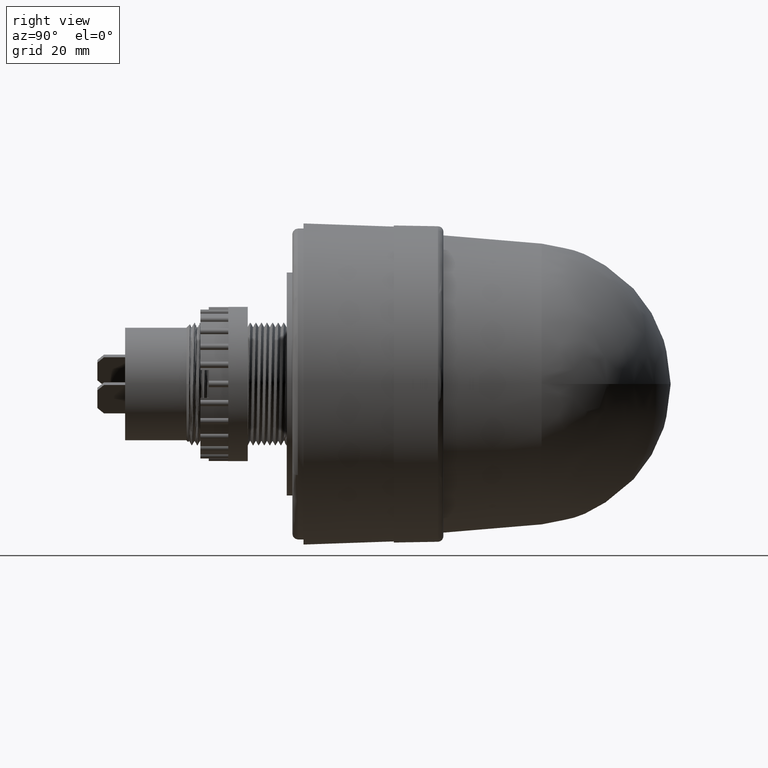
[diagram: clean part render]
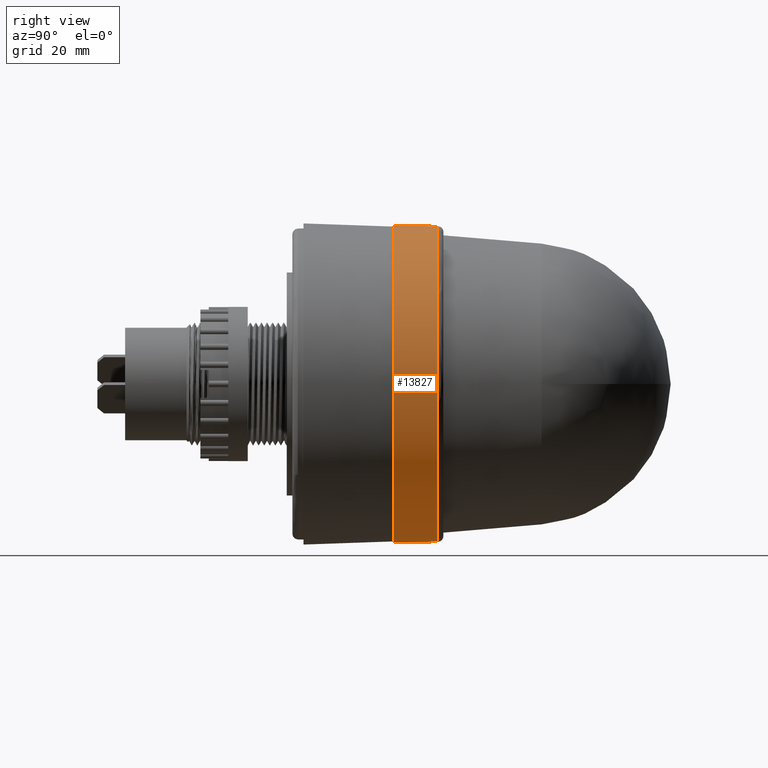
[diagram: same view with one face highlighted and labeled with its STEP entity id]
A machine part, right view. The second image highlights one B-rep face of the part: STEP entity #13827.
In plain terms, the highlighted conical surface has half-angle 1 deg.
Its self-contained STEP definition (entity closure, byte-faithful):
#531 = ORIENTED_EDGE ( 'NONE', *, *, #4887, .T. ) ;
#1646 = LINE ( 'NONE', #11508, #6459 ) ;
#2115 = AXIS2_PLACEMENT_3D ( 'NONE', #12367, #15938, #12436 ) ;
#2377 = FACE_OUTER_BOUND ( 'NONE', #11537, .T. ) ;
#2706 = VERTEX_POINT ( 'NONE', #11312 ) ;
#2730 = VERTEX_POINT ( 'NONE', #20176 ) ;
#4346 = CONICAL_SURFACE ( 'NONE', #2115, 1.120078740153986200, 0.01745329249999962400 ) ;
#4487 = CARTESIAN_POINT ( 'NONE',  ( 0.0000000000000000000, -5.887132426346487000E-014, 0.0000000000000000000 ) ) ;
#4741 = EDGE_CURVE ( 'NONE', #13615, #8404, #1646, .T. ) ;
#4782 = EDGE_CURVE ( 'NONE', #2730, #8404, #5891, .T. ) ;
#4887 = EDGE_CURVE ( 'NONE', #2706, #2730, #10341, .T. ) ;
#4917 = EDGE_CURVE ( 'NONE', #2706, #13615, #15077, .T. ) ;
#5619 = ORIENTED_EDGE ( 'NONE', *, *, #4782, .T. ) ;
#5891 = CIRCLE ( 'NONE', #21051, 1.120078740153986200 ) ;
#6293 = DIRECTION ( 'NONE',  ( 0.0000000000000000000, 0.0000000000000000000, -1.000000000000000000 ) ) ;
#6459 = VECTOR ( 'NONE', #22095, 39.37007874015748100 ) ;
#8303 = CARTESIAN_POINT ( 'NONE',  ( 0.0000000000000000000, 0.3117107246628851900, 0.0000000000000000000 ) ) ;
#8404 = VERTEX_POINT ( 'NONE', #9465 ) ;
#9465 = CARTESIAN_POINT ( 'NONE',  ( 0.0000000000000000000, -5.887132426346487000E-014, -1.120078740153986200 ) ) ;
#10103 = DIRECTION ( 'NONE',  ( 0.0000000000000000000, 0.0000000000000000000, -1.000000000000000000 ) ) ;
#10341 = LINE ( 'NONE', #11813, #19729 ) ;
#11312 = CARTESIAN_POINT ( 'NONE',  ( 1.368369234596027800E-016, 0.3117107246628851900, 1.114637809219668000 ) ) ;
#11508 = CARTESIAN_POINT ( 'NONE',  ( 0.0000000000000000000, -6.126169125792110300E-014, -1.120078740153986200 ) ) ;
#11537 = EDGE_LOOP ( 'NONE', ( #13687, #531, #5619, #15400 ) ) ;
#11732 = DIRECTION ( 'NONE',  ( 2.137303365641768400E-018, -0.9998476951567392100, 0.01745240641734287900 ) ) ;
#11813 = CARTESIAN_POINT ( 'NONE',  ( 1.371700843922579100E-016, -6.126169125792110300E-014, 1.120078740153986200 ) ) ;
#11989 = CARTESIAN_POINT ( 'NONE',  ( 0.0000000000000000000, 0.3117107246628851900, -1.114637809219668000 ) ) ;
#12367 = CARTESIAN_POINT ( 'NONE',  ( 0.0000000000000000000, -6.126169125792110300E-014, 0.0000000000000000000 ) ) ;
#12436 = DIRECTION ( 'NONE',  ( 0.0000000000000000000, 0.0000000000000000000, -1.000000000000000000 ) ) ;
#13615 = VERTEX_POINT ( 'NONE', #11989 ) ;
#13687 = ORIENTED_EDGE ( 'NONE', *, *, #4917, .F. ) ;
#13827 = ADVANCED_FACE ( 'NONE', ( #2377 ), #4346, .T. ) ;
#15077 = CIRCLE ( 'NONE', #20814, 1.114637809219668000 ) ;
#15400 = ORIENTED_EDGE ( 'NONE', *, *, #4741, .F. ) ;
#15938 = DIRECTION ( 'NONE',  ( 0.0000000000000000000, -1.000000000000000000, 0.0000000000000000000 ) ) ;
#16926 = DIRECTION ( 'NONE',  ( -0.0000000000000000000, 1.000000000000000000, -0.0000000000000000000 ) ) ;
#19729 = VECTOR ( 'NONE', #11732, 39.37007874015748100 ) ;
#20176 = CARTESIAN_POINT ( 'NONE',  ( 1.371700843922579100E-016, -5.887132426346487000E-014, 1.120078740153986200 ) ) ;
#20697 = DIRECTION ( 'NONE',  ( -0.0000000000000000000, 1.000000000000000000, -0.0000000000000000000 ) ) ;
#20814 = AXIS2_PLACEMENT_3D ( 'NONE', #8303, #20697, #10103 ) ;
#21051 = AXIS2_PLACEMENT_3D ( 'NONE', #4487, #16926, #6293 ) ;
#22095 = DIRECTION ( 'NONE',  ( 0.0000000000000000000, -0.9998476951567392100, -0.01745240641734287900 ) ) ;